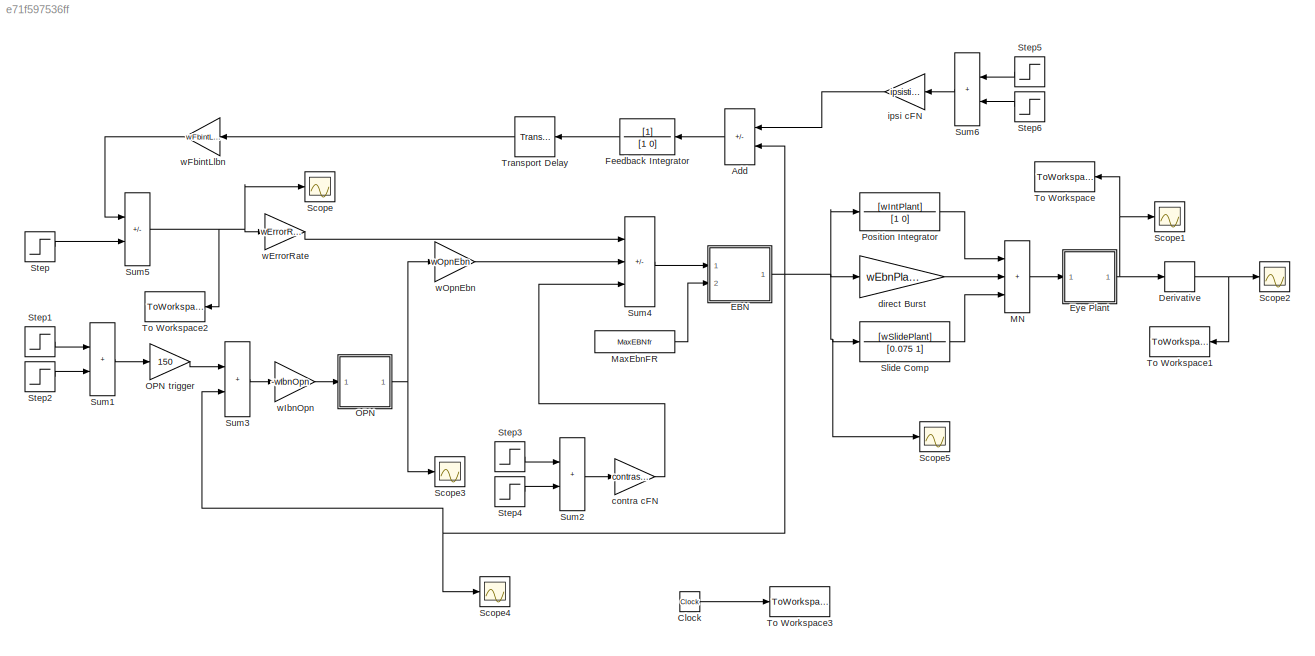
MODEL slx_e71f597536ff
KIND model
CONFIG AbsTol = 1e-6
CONFIG EnableMultiTasking = off
CONFIG FixedStep = 0.0001
CONFIG MaxStep = auto
CONFIG MinStep = auto
CONFIG RelTol = 1e-3
CONFIG SampleTimeConstraint = Unconstrained
CONFIG SolverName = ode4
CONFIG StartTime = 0.0
CONFIG StopTime = 0.196
BLOCK [Sum] Add
  IconShape = rectangular
  Inputs = -+
  Ports = [2, 1]
BLOCK [Clock] Clock
BLOCK [Derivative] Derivative
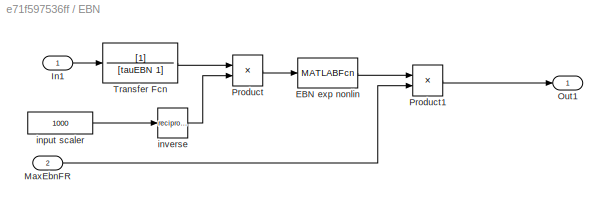
BLOCK [SubSystem] EBN
  Ports = [2, 1]
  RequestExecContextInheritance = off
BLOCK [MATLABFcn] EBN/EBN exp nonlin
  MATLABFcn = ebnF
  Ports = [1, 1]
BLOCK [Inport] EBN/In1
BLOCK [Inport] EBN/MaxEbnFR
  Port = 2
BLOCK [Outport] EBN/Out1
BLOCK [Product] EBN/Product
  InputSameDT = on
  OutDataTypeStr = Inherit: Same as first input
  Ports = [2, 1]
  RndMeth = Zero
  SaturateOnIntegerOverflow = on
BLOCK [Product] EBN/Product1
  InputSameDT = on
  Inputs = **
  OutDataTypeStr = Inherit: Same as first input
  Ports = [2, 1]
  RndMeth = Zero
  SaturateOnIntegerOverflow = on
BLOCK [TransferFcn] EBN/Transfer Fcn
  Denominator = [tauEBN 1]
BLOCK [Constant] EBN/input scaler
  Value = 1000
BLOCK [Math] EBN/inverse
  Operator = reciprocal
  Ports = [1, 1]
  SignedPower = on
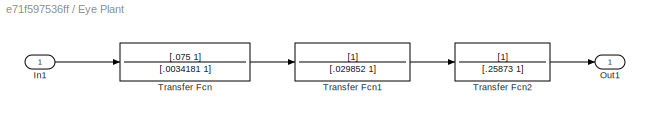
BLOCK [SubSystem] Eye Plant
  Ports = [1, 1]
  RequestExecContextInheritance = off
BLOCK [Inport] Eye Plant/In1
BLOCK [Outport] Eye Plant/Out1
BLOCK [TransferFcn] Eye Plant/Transfer Fcn
  Denominator = [.0034181 1]
  Numerator = [.075 1]
BLOCK [TransferFcn] Eye Plant/Transfer Fcn1
  Denominator = [.029852 1]
BLOCK [TransferFcn] Eye Plant/Transfer Fcn2
  Denominator = [.25873 1]
BLOCK [TransferFcn] Feedback Integrator
  Denominator = [1 0]
BLOCK [Sum] MN
  IconShape = rectangular
  InputSameDT = on
  Inputs = +++
  OutDataTypeStr = Inherit: Same as first input
  Ports = [3, 1]
  SaturateOnIntegerOverflow = on
BLOCK [Constant] MaxEbnFR
  Value = MaxEBNfr
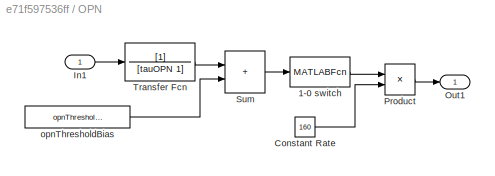
BLOCK [SubSystem] OPN
  Ports = [1, 1]
  RequestExecContextInheritance = off
BLOCK [Gain] OPN trigger
  Gain = 150
  OutDataTypeStr = Inherit: Same as input
  ParamDataTypeStr = Inherit: Same as input
  SaturateOnIntegerOverflow = on
BLOCK [MATLABFcn] OPN/1-0 switch
  MATLABFcn = opnF
  Ports = [1, 1]
BLOCK [Constant] OPN/Constant Rate
  Value = 160
BLOCK [Inport] OPN/In1
BLOCK [Outport] OPN/Out1
BLOCK [Product] OPN/Product
  InputSameDT = on
  Inputs = **
  OutDataTypeStr = Inherit: Same as first input
  Ports = [2, 1]
  RndMeth = Zero
  SaturateOnIntegerOverflow = on
BLOCK [Sum] OPN/Sum
  IconShape = rectangular
  InputSameDT = on
  OutDataTypeStr = Inherit: Same as first input
  Ports = [2, 1]
  SaturateOnIntegerOverflow = on
BLOCK [TransferFcn] OPN/Transfer Fcn
  Denominator = [tauOPN 1]
BLOCK [Constant] OPN/opnThresholdBias
  Value = opnThresholdBias
BLOCK [TransferFcn] Position Integrator
  Denominator = [1 0]
  Numerator = [wIntPlant]
BLOCK [Scope] Scope
  Floating = off
  NumInputPorts = 1
  Ports = [1]
  ScopeSpecificationString = Simulink.scopes.TimeScopeBlockCfg('CurrentConfiguration', extmgr.ConfigurationSet(extmgr.Configuration('Core','General UI',true),extmgr.Configuration('Core','Source UI',true),extmgr.Configuration('Sources','WiredSimulink',true,'DataLoggingSaveFormat','Array','DataLoggingLimitDataPoints',true,'DataLoggingDecimation','1','DataLoggingDecimateData',true),extmgr.Configuration('Visuals','Time Domain',tr...<+1754ch>
BLOCK [Scope] Scope1
  Floating = off
  NumInputPorts = 1
  Ports = [1]
  ScopeSpecificationString = Simulink.scopes.TimeScopeBlockCfg('CurrentConfiguration', extmgr.ConfigurationSet(extmgr.Configuration('Core','General UI',true),extmgr.Configuration('Core','Source UI',true),extmgr.Configuration('Sources','WiredSimulink',true,'DataLoggingSaveFormat','Array','DataLoggingLimitDataPoints',true,'DataLoggingDecimation','1','DataLoggingDecimateData',true),extmgr.Configuration('Visuals','Time Domain',tr...<+1759ch>
BLOCK [Scope] Scope2
  Floating = off
  NumInputPorts = 1
  Ports = [1]
  ScopeSpecificationString = Simulink.scopes.TimeScopeBlockCfg('CurrentConfiguration', extmgr.ConfigurationSet(extmgr.Configuration('Core','General UI',true),extmgr.Configuration('Core','Source UI',true),extmgr.Configuration('Sources','WiredSimulink',true,'DataLoggingSaveFormat','Array','DataLoggingLimitDataPoints',true,'DataLoggingDecimation','1','DataLoggingDecimateData',true,'DataLoggingVariableName','ScopeData1'),extmgr.C...<+1810ch>
BLOCK [Scope] Scope3
  Floating = off
  NumInputPorts = 1
  Ports = [1]
  ScopeSpecificationString = Simulink.scopes.TimeScopeBlockCfg('CurrentConfiguration', extmgr.ConfigurationSet(extmgr.Configuration('Core','General UI',true),extmgr.Configuration('Core','Source UI',true),extmgr.Configuration('Sources','WiredSimulink',true,'DataLoggingSaveFormat','Array','DataLoggingLimitDataPoints',true,'DataLoggingDecimation','1','DataLoggingDecimateData',true,'DataLoggingVariableName','ScopeData2'),extmgr.C...<+1799ch>
BLOCK [Scope] Scope4
  Floating = off
  NumInputPorts = 1
  Ports = [1]
  ScopeSpecificationString = Simulink.scopes.TimeScopeBlockCfg('CurrentConfiguration', extmgr.ConfigurationSet(extmgr.Configuration('Core','General UI',true),extmgr.Configuration('Core','Source UI',true),extmgr.Configuration('Sources','WiredSimulink',true,'DataLoggingSaveFormat','Array','DataLoggingLimitDataPoints',true,'DataLoggingDecimation','1','DataLoggingDecimateData',true,'DataLoggingVariableName','ScopeData3'),extmgr.C...<+1812ch>
BLOCK [Scope] Scope5
  Floating = off
  NumInputPorts = 1
  Ports = [1]
  ScopeSpecificationString = Simulink.scopes.TimeScopeBlockCfg('CurrentConfiguration', extmgr.ConfigurationSet(extmgr.Configuration('Core','General UI',true),extmgr.Configuration('Core','Source UI',true),extmgr.Configuration('Sources','WiredSimulink',true,'DataLoggingSaveFormat','Array','DataLoggingLimitDataPoints',true,'DataLoggingDecimation','1','DataLoggingDecimateData',true,'DataLoggingVariableName','ScopeData4'),extmgr.C...<+1811ch>
BLOCK [TransferFcn] Slide Comp
  Denominator = [0.075 1]
  Numerator = [wSlidePlant]
BLOCK [Step] Step
  After = 24
  Time = 0
BLOCK [Step] Step1
  SampleTime = 0
  Time = 0.04
BLOCK [Step] Step2
  After = -1
  SampleTime = 0
  Time = 0.05
BLOCK [Step] Step3
  SampleTime = 0
  Time = contrapulset0
BLOCK [Step] Step4
  After = -1
  SampleTime = 0
  Time = contrapulset1
BLOCK [Step] Step5
  SampleTime = 0
  Time = ipsipulset0
BLOCK [Step] Step6
  After = -1
  SampleTime = 0
  Time = ipsipulset1
BLOCK [Sum] Sum1
  IconShape = rectangular
  InputSameDT = on
  OutDataTypeStr = Inherit: Same as first input
  Ports = [2, 1]
  SaturateOnIntegerOverflow = on
BLOCK [Sum] Sum2
  IconShape = rectangular
  InputSameDT = on
  OutDataTypeStr = Inherit: Same as first input
  Ports = [2, 1]
  SaturateOnIntegerOverflow = on
BLOCK [Sum] Sum3
  IconShape = rectangular
  InputSameDT = on
  OutDataTypeStr = Inherit: Same as first input
  Ports = [2, 1]
  SaturateOnIntegerOverflow = on
BLOCK [Sum] Sum4
  IconShape = rectangular
  InputSameDT = on
  Inputs = +--
  OutDataTypeStr = Inherit: Same as first input
  Ports = [3, 1]
  SaturateOnIntegerOverflow = on
BLOCK [Sum] Sum5
  IconShape = rectangular
  InputSameDT = on
  Inputs = -+
  OutDataTypeStr = Inherit: Same as first input
  Ports = [2, 1]
  SaturateOnIntegerOverflow = on
BLOCK [Sum] Sum6
  IconShape = rectangular
  InputSameDT = on
  OutDataTypeStr = Inherit: Same as first input
  Ports = [2, 1]
  SaturateOnIntegerOverflow = on
BLOCK [ToWorkspace] To Workspace
  MaxDataPoints = inf
  Ports = [1]
  SampleTime = -1
  VariableName = pos
BLOCK [ToWorkspace] To Workspace1
  MaxDataPoints = inf
  Ports = [1]
  SampleTime = -1
  VariableName = vel
BLOCK [ToWorkspace] To Workspace2
  MaxDataPoints = inf
  Ports = [1]
  SampleTime = -1
  VariableName = dme
BLOCK [ToWorkspace] To Workspace3
  MaxDataPoints = inf
  Ports = [1]
  SampleTime = -1
  VariableName = t
BLOCK [TransportDelay] Transport Delay
  DelayTime = 0.005
  Ports = [1, 1]
BLOCK [Gain] contra cFN
  Gain = contrastimrate
  OutDataTypeStr = Inherit: Same as input
  ParamDataTypeStr = Inherit: Same as input
  SaturateOnIntegerOverflow = on
BLOCK [Gain] direct Burst
  Gain = wEbnPlant
  OutDataTypeStr = Inherit: Same as input
  ParamDataTypeStr = Inherit: Same as input
  SaturateOnIntegerOverflow = on
BLOCK [Gain] ipsi cFN
  Gain = ipsistimrate
  OutDataTypeStr = Inherit: Same as input
  ParamDataTypeStr = Inherit: Same as input
  SaturateOnIntegerOverflow = on
BLOCK [Gain] wErrorRate
  Gain = wErrorRate
  OutDataTypeStr = Inherit: Same as input
  ParamDataTypeStr = Inherit: Same as input
  SaturateOnIntegerOverflow = on
BLOCK [Gain] wFbintLlbn
  Gain = wFbintLlbn
  OutDataTypeStr = Inherit: Same as input
  ParamDataTypeStr = Inherit: Same as input
  SaturateOnIntegerOverflow = on
BLOCK [Gain] wIbnOpn
  Gain = -wIbnOpn
  NameLocation = top
  OutDataTypeStr = Inherit: Same as input
  ParamDataTypeStr = Inherit: Same as input
  SaturateOnIntegerOverflow = on
BLOCK [Gain] wOpnEbn
  Gain = wOpnEbn
  OutDataTypeStr = Inherit: Same as input
  ParamDataTypeStr = Inherit: Same as input
  SaturateOnIntegerOverflow = on
LINE Add:1 -> Feedback Integrator:1
LINE Clock:1 -> To Workspace3:1
NET Derivative:1 -> Scope2:1, To Workspace1:1
LINE EBN/EBN exp nonlin:1 -> EBN/Product1:1
LINE EBN/In1:1 -> EBN/Transfer Fcn:1
LINE EBN/MaxEbnFR:1 -> EBN/Product1:2
LINE EBN/Product1:1 -> EBN/Out1:1
LINE EBN/Product:1 -> EBN/EBN exp nonlin:1
LINE EBN/Transfer Fcn:1 -> EBN/Product:1
LINE EBN/input scaler:1 -> EBN/inverse:1
LINE EBN/inverse:1 -> EBN/Product:2
NET EBN:1 -> Add:2, Position Integrator:1, Scope4:1, Scope5:1, Slide Comp:1, Sum3:2, direct Burst:1
LINE Eye Plant/In1:1 -> Eye Plant/Transfer Fcn:1
LINE Eye Plant/Transfer Fcn1:1 -> Eye Plant/Transfer Fcn2:1
LINE Eye Plant/Transfer Fcn2:1 -> Eye Plant/Out1:1
LINE Eye Plant/Transfer Fcn:1 -> Eye Plant/Transfer Fcn1:1
NET Eye Plant:1 -> Derivative:1, Scope1:1, To Workspace:1
LINE Feedback Integrator:1 -> Transport Delay:1
LINE MN:1 -> Eye Plant:1
LINE MaxEbnFR:1 -> EBN:2
LINE OPN trigger:1 -> Sum3:1
LINE OPN/1-0 switch:1 -> OPN/Product:1
LINE OPN/Constant Rate:1 -> OPN/Product:2
LINE OPN/In1:1 -> OPN/Transfer Fcn:1
LINE OPN/Product:1 -> OPN/Out1:1
LINE OPN/Sum:1 -> OPN/1-0 switch:1
LINE OPN/Transfer Fcn:1 -> OPN/Sum:1
LINE OPN/opnThresholdBias:1 -> OPN/Sum:2
NET OPN:1 -> Scope3:1, wOpnEbn:1
LINE Position Integrator:1 -> MN:1
LINE Slide Comp:1 -> MN:3
LINE Step1:1 -> Sum1:1
LINE Step2:1 -> Sum1:2
LINE Step3:1 -> Sum2:1
LINE Step4:1 -> Sum2:2
LINE Step5:1 -> Sum6:1
LINE Step6:1 -> Sum6:2
LINE Step:1 -> Sum5:2
LINE Sum1:1 -> OPN trigger:1
LINE Sum2:1 -> contra cFN:1
LINE Sum3:1 -> wIbnOpn:1
LINE Sum4:1 -> EBN:1
NET Sum5:1 -> Scope:1, To Workspace2:1, wErrorRate:1
LINE Sum6:1 -> ipsi cFN:1
LINE Transport Delay:1 -> wFbintLlbn:1
LINE contra cFN:1 -> Sum4:3
LINE direct Burst:1 -> MN:2
LINE ipsi cFN:1 -> Add:1
LINE wErrorRate:1 -> Sum4:1
LINE wFbintLlbn:1 -> Sum5:1
LINE wIbnOpn:1 -> OPN:1
LINE wOpnEbn:1 -> Sum4:2
note: NET lines group one-source signal fan-out (src -> all destinations, sorted); 1:1 wires keep LINE
